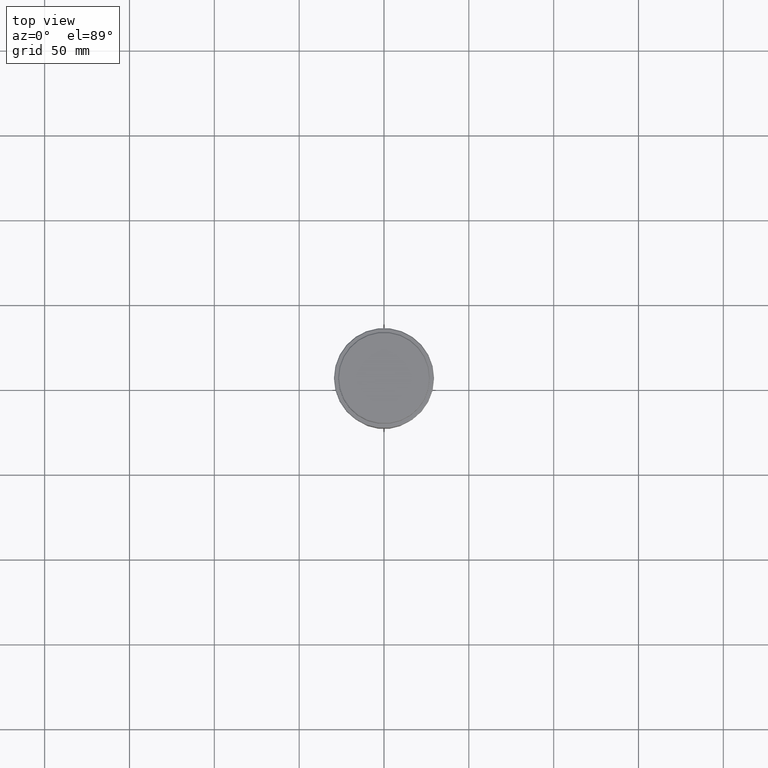
[diagram: clean part render]
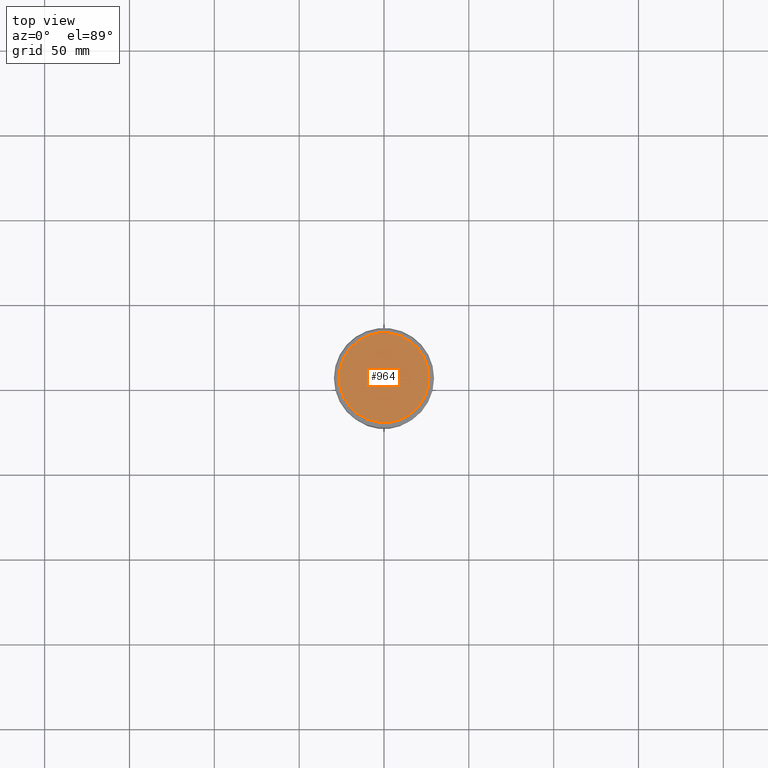
[diagram: same view with one face highlighted and labeled with its STEP entity id]
A machine part, top view. The second image highlights one B-rep face of the part: STEP entity #964.
In plain terms, the highlighted planar face has unit normal (0, -0, 1).
Its self-contained STEP definition (entity closure, byte-faithful):
#2 = CARTESIAN_POINT ( 'NONE',  ( 26.50000000000002487, 3.275930187719171524E-15, 0.000000000000000000 ) ) ;
#16 = ORIENTED_EDGE ( 'NONE', *, *, #938, .T. ) ;
#41 = PLANE ( 'NONE',  #672 ) ;
#57 = VERTEX_POINT ( 'NONE', #628 ) ;
#255 = EDGE_LOOP ( 'NONE', ( #16, #480 ) ) ;
#363 = CARTESIAN_POINT ( 'NONE',  ( 0.000000000000000000, 0.000000000000000000, 0.000000000000000000 ) ) ;
#480 = ORIENTED_EDGE ( 'NONE', *, *, #875, .T. ) ;
#484 = VERTEX_POINT ( 'NONE', #2 ) ;
#547 = DIRECTION ( 'NONE',  ( -0.000000000000000000, -0.000000000000000000, 1.000000000000000000 ) ) ;
#558 = CIRCLE ( 'NONE', #1048, 26.50000000000002487 ) ;
#628 = CARTESIAN_POINT ( 'NONE',  ( -26.50000000000002487, 0.000000000000000000, 0.000000000000000000 ) ) ;
#672 = AXIS2_PLACEMENT_3D ( 'NONE', #363, #1124, #705 ) ;
#705 = DIRECTION ( 'NONE',  ( 1.000000000000000000, 0.000000000000000000, 0.000000000000000000 ) ) ;
#875 = EDGE_CURVE ( 'NONE', #484, #57, #955, .T. ) ;
#881 = DIRECTION ( 'NONE',  ( 1.000000000000000000, 0.000000000000000000, 0.000000000000000000 ) ) ;
#906 = AXIS2_PLACEMENT_3D ( 'NONE', #1211, #985, #996 ) ;
#938 = EDGE_CURVE ( 'NONE', #57, #484, #558, .T. ) ;
#955 = CIRCLE ( 'NONE', #906, 26.50000000000002487 ) ;
#964 = ADVANCED_FACE ( 'NONE', ( #1040 ), #41, .T. ) ;
#985 = DIRECTION ( 'NONE',  ( -0.000000000000000000, -0.000000000000000000, 1.000000000000000000 ) ) ;
#996 = DIRECTION ( 'NONE',  ( 1.000000000000000000, 0.000000000000000000, 0.000000000000000000 ) ) ;
#1040 = FACE_OUTER_BOUND ( 'NONE', #255, .T. ) ;
#1048 = AXIS2_PLACEMENT_3D ( 'NONE', #1099, #547, #881 ) ;
#1099 = CARTESIAN_POINT ( 'NONE',  ( 0.000000000000000000, 0.000000000000000000, 0.000000000000000000 ) ) ;
#1124 = DIRECTION ( 'NONE',  ( 0.000000000000000000, -0.000000000000000000, 1.000000000000000000 ) ) ;
#1211 = CARTESIAN_POINT ( 'NONE',  ( 0.000000000000000000, 0.000000000000000000, 0.000000000000000000 ) ) ;